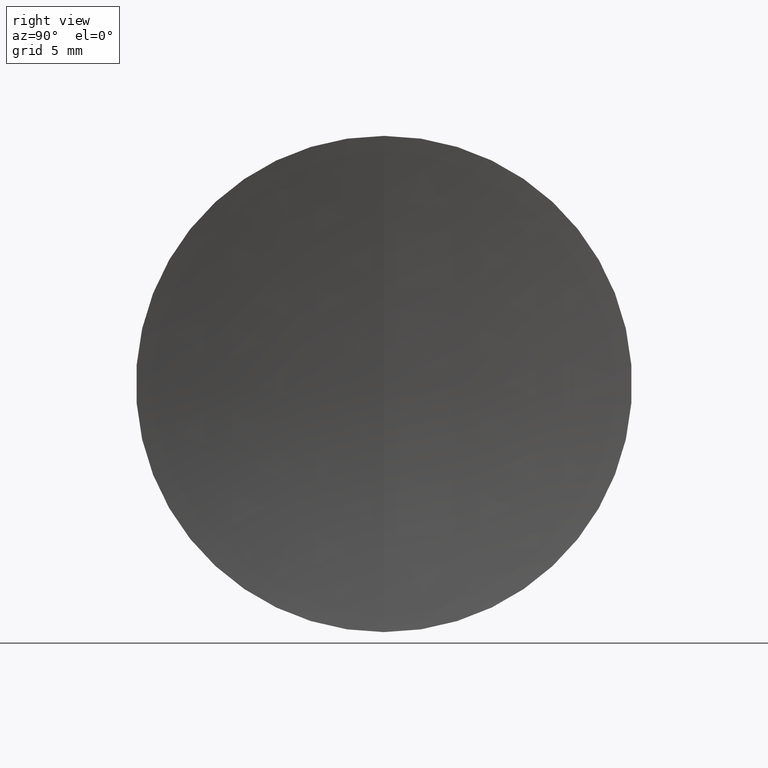
[diagram: clean part render]
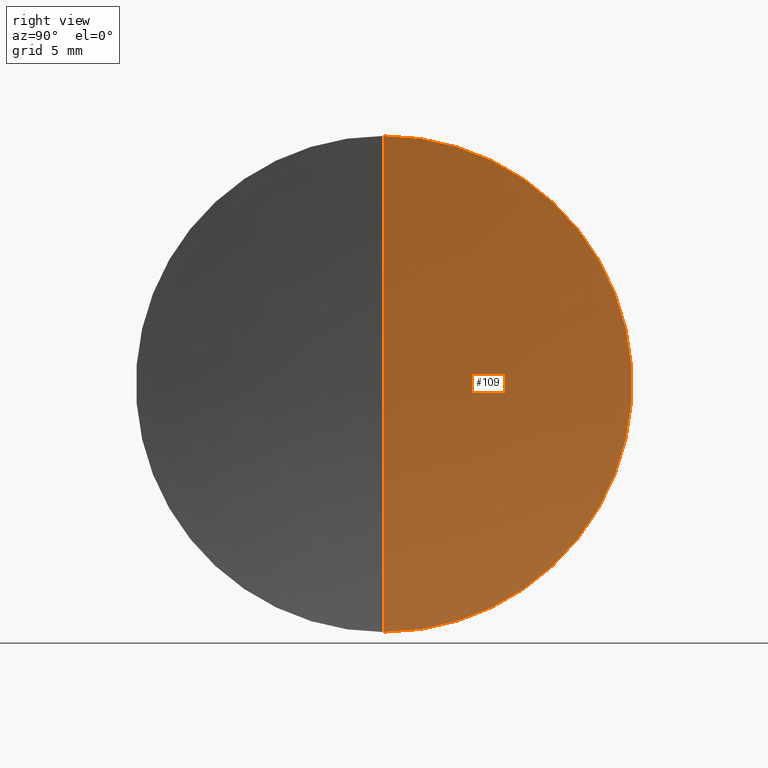
[diagram: same view with one face highlighted and labeled with its STEP entity id]
A machine part, right view. The second image highlights one B-rep face of the part: STEP entity #109.
In plain terms, the highlighted spherical surface has radius 97.72 mm.
Its self-contained STEP definition (entity closure, byte-faithful):
#9 = CARTESIAN_POINT ( 'NONE',  ( 201.6929667487320900, 0.0000000000000000000, 0.0000000000000000000 ) ) ;
#10 = DIRECTION ( 'NONE',  ( 0.0000000000000000000, 1.224646799147353200E-016, -1.000000000000000000 ) ) ;
#11 = CARTESIAN_POINT ( 'NONE',  ( 105.1310777862640600, 0.0000000000000000000, -14.99999999999993600 ) ) ;
#14 = AXIS2_PLACEMENT_3D ( 'NONE', #9, #147, #10 ) ;
#35 = DIRECTION ( 'NONE',  ( 0.0000000000000000000, 1.000000000000000000, -0.0000000000000000000 ) ) ;
#47 = AXIS2_PLACEMENT_3D ( 'NONE', #272, #86, #154 ) ;
#66 = FACE_OUTER_BOUND ( 'NONE', #183, .T. ) ;
#69 = CIRCLE ( 'NONE', #14, 97.71999999999999900 ) ;
#74 = SPHERICAL_SURFACE ( 'NONE', #320, 97.71999999999999900 ) ;
#77 = DIRECTION ( 'NONE',  ( -0.0000000000000000000, -1.000000000000000000, -0.0000000000000000000 ) ) ;
#86 = DIRECTION ( 'NONE',  ( -1.000000000000000000, -0.0000000000000000000, -0.0000000000000000000 ) ) ;
#90 = CARTESIAN_POINT ( 'NONE',  ( 201.6929667487320900, 0.0000000000000000000, 0.0000000000000000000 ) ) ;
#109 = ADVANCED_FACE ( 'NONE', ( #66 ), #74, .F. ) ;
#122 = VERTEX_POINT ( 'NONE', #199 ) ;
#129 = VERTEX_POINT ( 'NONE', #146 ) ;
#146 = CARTESIAN_POINT ( 'NONE',  ( 105.1310777862640600, -1.836970198721021700E-015, 14.99999999999993600 ) ) ;
#147 = DIRECTION ( 'NONE',  ( 0.0000000000000000000, -1.000000000000000000, -1.224646799147353200E-016 ) ) ;
#150 = EDGE_CURVE ( 'NONE', #129, #192, #340, .T. ) ;
#154 = DIRECTION ( 'NONE',  ( 0.0000000000000000000, 0.0000000000000000000, 1.000000000000000000 ) ) ;
#156 = ORIENTED_EDGE ( 'NONE', *, *, #181, .F. ) ;
#178 = DIRECTION ( 'NONE',  ( 0.0000000000000000000, 0.0000000000000000000, -1.000000000000000000 ) ) ;
#181 = EDGE_CURVE ( 'NONE', #192, #122, #291, .T. ) ;
#183 = EDGE_LOOP ( 'NONE', ( #208, #346, #156 ) ) ;
#192 = VERTEX_POINT ( 'NONE', #11 ) ;
#199 = CARTESIAN_POINT ( 'NONE',  ( 103.9729667487320800, 0.0000000000000000000, -5.983624260633968100E-015 ) ) ;
#208 = ORIENTED_EDGE ( 'NONE', *, *, #150, .F. ) ;
#221 = CARTESIAN_POINT ( 'NONE',  ( 201.6929667487320900, 0.0000000000000000000, 0.0000000000000000000 ) ) ;
#250 = DIRECTION ( 'NONE',  ( 0.0000000000000000000, 0.0000000000000000000, 1.000000000000000000 ) ) ;
#272 = CARTESIAN_POINT ( 'NONE',  ( 105.1310777862640600, 0.0000000000000000000, 0.0000000000000000000 ) ) ;
#275 = EDGE_CURVE ( 'NONE', #129, #122, #69, .T. ) ;
#291 = CIRCLE ( 'NONE', #330, 97.71999999999999900 ) ;
#320 = AXIS2_PLACEMENT_3D ( 'NONE', #221, #77, #178 ) ;
#330 = AXIS2_PLACEMENT_3D ( 'NONE', #90, #35, #250 ) ;
#340 = CIRCLE ( 'NONE', #47, 15.00000000000000200 ) ;
#346 = ORIENTED_EDGE ( 'NONE', *, *, #275, .T. ) ;